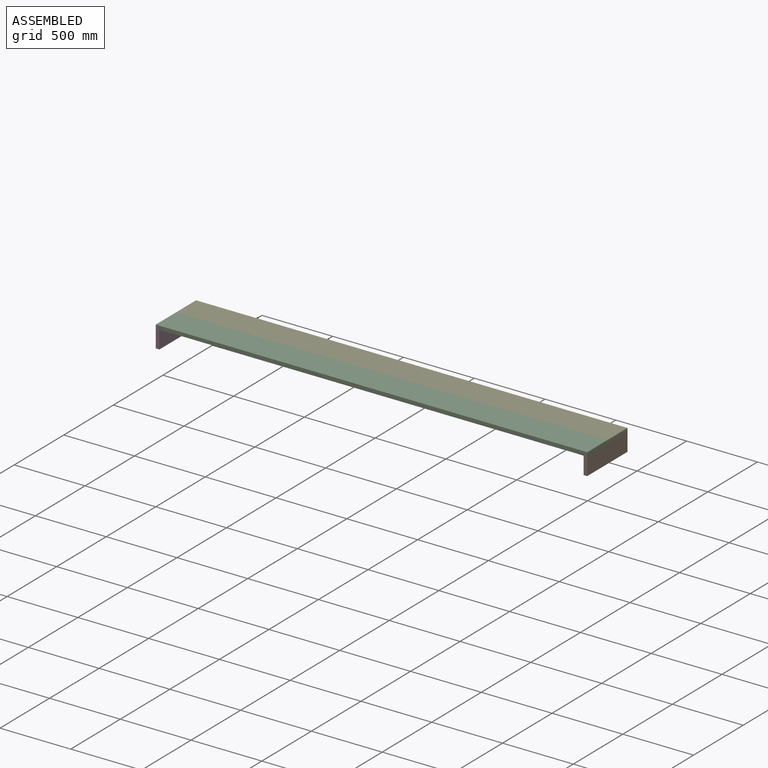
[diagram: assembled view]
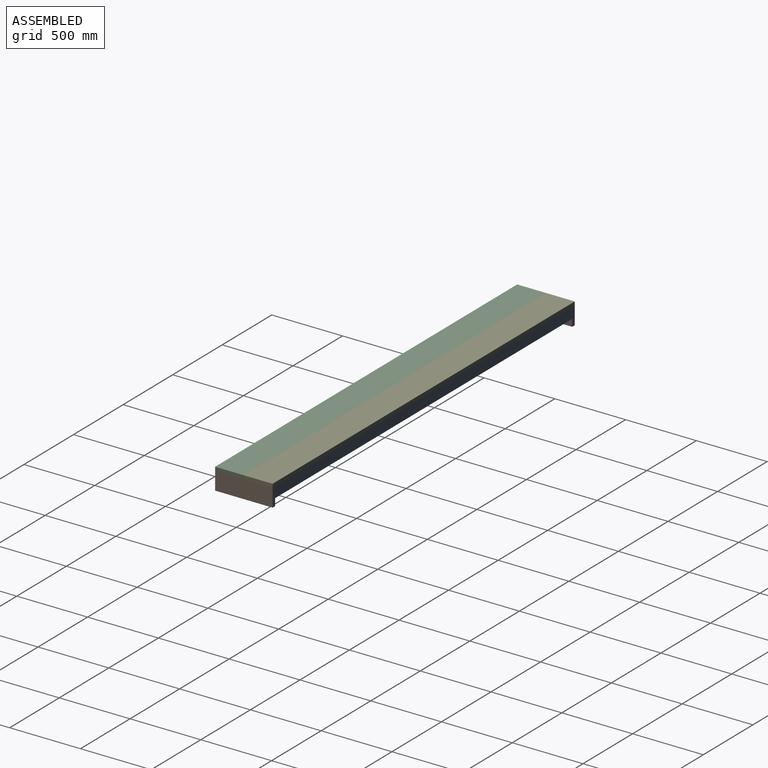
[diagram: assembled view, second angle]
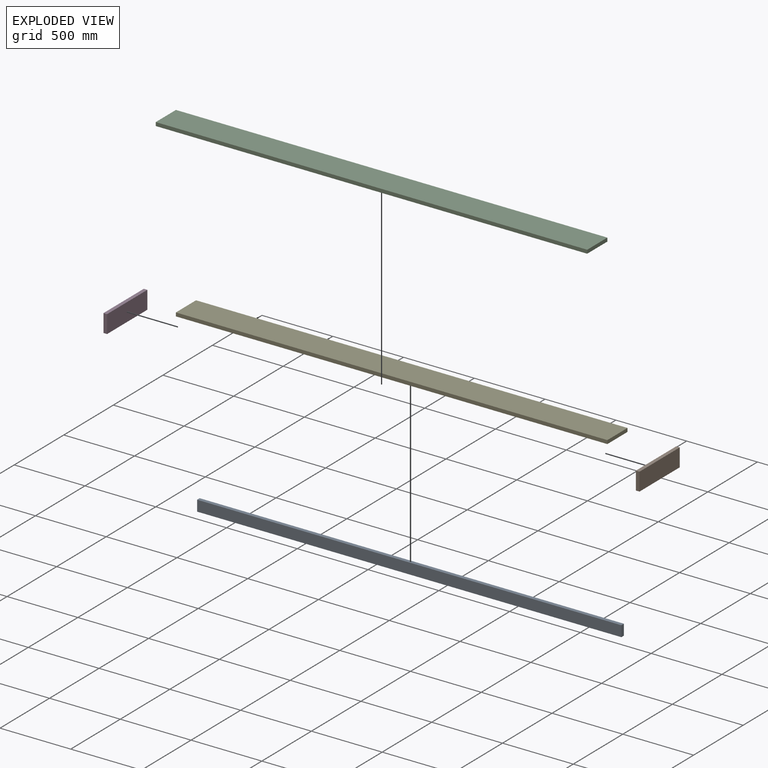
[diagram: exploded view]
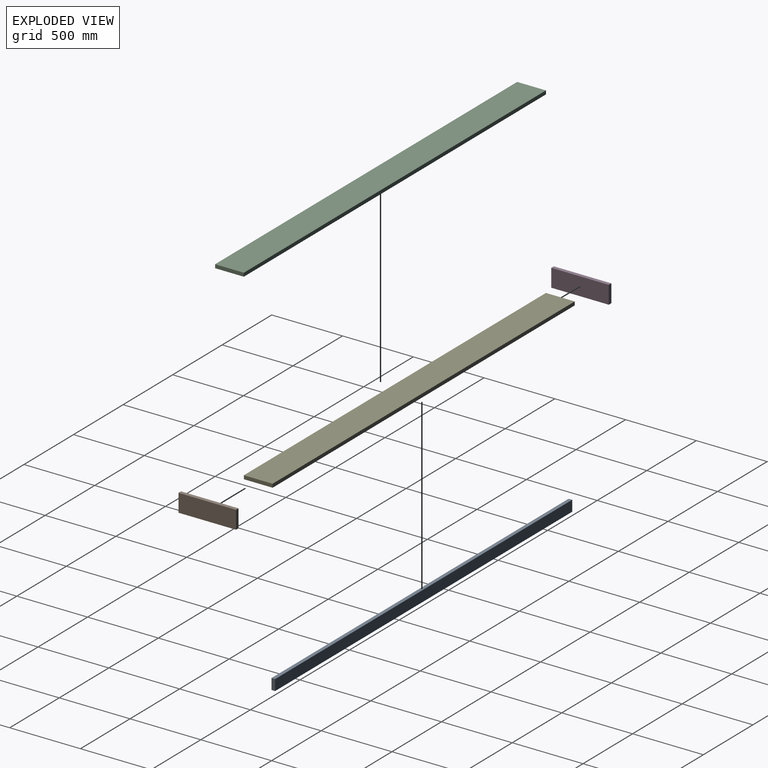
[diagram: exploded view, second angle]
ASSEMBLY  parts=5 mates=12
PART A: 6 faces, bbox 2997.2x25.4x76.2 mm
  f0: plane 2997.2x76.2mm, normal (0,1,0), area 228386.6mm2, adj f1,f3,f4,f5
  f1: plane 2997.2x25.4mm, normal (0,0,1), area 76128.9mm2, adj f0,f2,f4,f5
  f2: plane 2997.2x76.2mm, normal (0,-1,0), area 228386.6mm2, adj f1,f3,f4,f5
  f3: plane 2997.2x25.4mm, normal (0,0,-1), area 76128.9mm2, adj f0,f2,f4,f5
  f4: plane 76.2x25.4mm, normal (1,0,0), area 1935.5mm2, adj f0,f1,f2,f3
  f5: plane 76.2x25.4mm, normal (-1,0,0), area 1935.5mm2, adj f0,f1,f2,f3
PART B: 6 faces, bbox 25.4x406.4x127 mm
  f0: plane 406.4x127mm, normal (1,0,0), area 51612.8mm2, adj f1,f3,f4,f5
  f1: plane 406.4x25.4mm, normal (0,0,1), area 10322.6mm2, adj f0,f2,f4,f5
  f2: plane 406.4x127mm, normal (-1,0,0), area 51612.8mm2, adj f1,f3,f4,f5
  f3: plane 406.4x25.4mm, normal (0,0,-1), area 10322.6mm2, adj f0,f2,f4,f5
  f4: plane 127x25.4mm, normal (0,-1,0), area 3225.8mm2, adj f0,f1,f2,f3
  f5: plane 127x25.4mm, normal (0,1,0), area 3225.8mm2, adj f0,f1,f2,f3
PART C: 6 faces, bbox 3048x203.2x25.4 mm
  f0: plane 3048x25.4mm, normal (0,1,0), area 77419.2mm2, adj f1,f3,f4,f5
  f1: plane 3048x203.2mm, normal (0,0,1), area 619353.6mm2, adj f0,f2,f4,f5
  f2: plane 3048x25.4mm, normal (0,-1,0), area 77419.2mm2, adj f1,f3,f4,f5
  f3: plane 3048x203.2mm, normal (0,0,-1), area 619353.6mm2, adj f0,f2,f4,f5
  f4: plane 203.2x25.4mm, normal (1,0,0), area 5161.3mm2, adj f0,f1,f2,f3
  f5: plane 203.2x25.4mm, normal (-1,0,0), area 5161.3mm2, adj f0,f1,f2,f3
PART D: same geometry as B
PART E: same geometry as C
PLACE A t=(289.84,14.43,27.1)mm
PLACE B t=(1801.14,27.13,1.7)mm
PLACE C t=(289.84,-277.67,77.9)mm
PLACE D t=(-1221.46,27.13,1.7)mm
PLACE E t=(289.84,-74.47,77.9)mm
MATE planar E.f4 <-> B.f0  axis (1,0,0) through (1813.84,-74.47,65.2)mm
MATE planar D.f0 <-> A.f5  axis (1,0,0) through (-1208.76,-176.07,1.7)mm
MATE planar C.f0 <-> E.f2  axis (0,1,0) through (289.84,-176.07,77.9)mm
MATE planar E.f3 <-> A.f1  axis (0,0,-1) through (289.84,-74.47,65.2)mm
MATE planar D.f1 <-> A.f1  axis (0,0,1) through (-1221.46,-176.07,65.2)mm
MATE planar A.f1 <-> B.f1  axis (0,0,1) through (289.84,14.43,65.2)mm
MATE planar C.f1 <-> E.f1  axis (0,0,1) through (289.84,-277.67,90.6)mm
MATE planar A.f4 <-> B.f2  axis (1,0,0) through (1788.44,14.43,27.1)mm
MATE planar A.f0 <-> B.f5  axis (0,1,0) through (1788.44,27.13,27.1)mm
MATE planar E.f0 <-> A.f0  axis (0,1,0) through (289.84,27.13,77.9)mm
MATE planar C.f4 <-> B.f0  axis (1,0,0) through (1813.84,-277.67,77.9)mm
MATE planar D.f5 <-> A.f0  axis (0,1,0) through (-1221.46,27.13,1.7)mm
